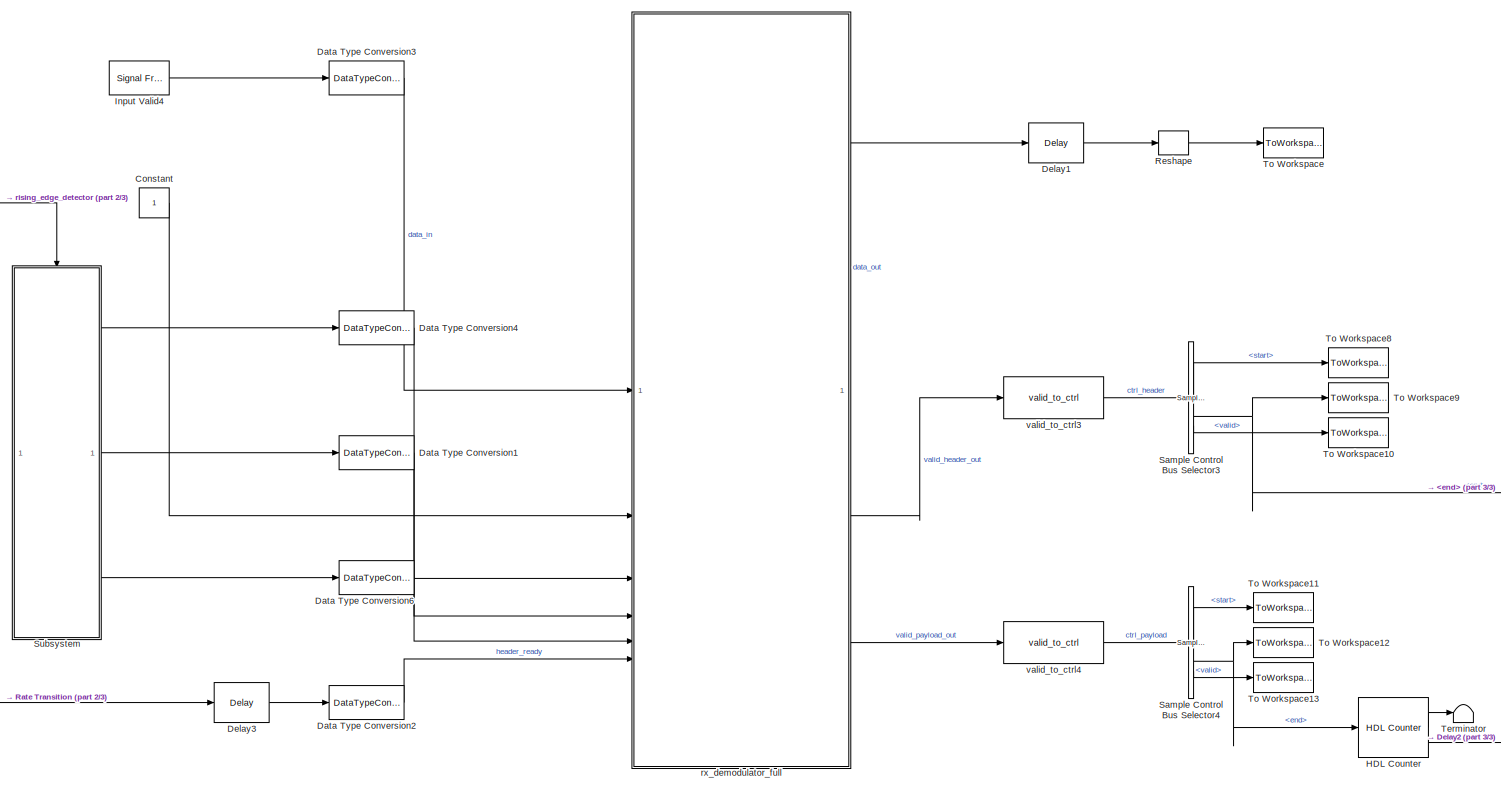
[diagram: root canvas - part 1/3, center side, full height]
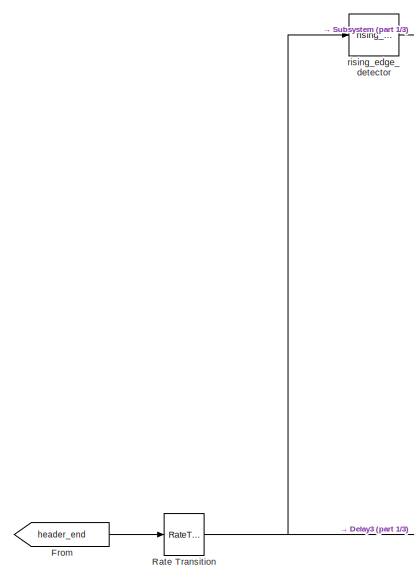
[diagram: root canvas - part 2/3, middle left region]
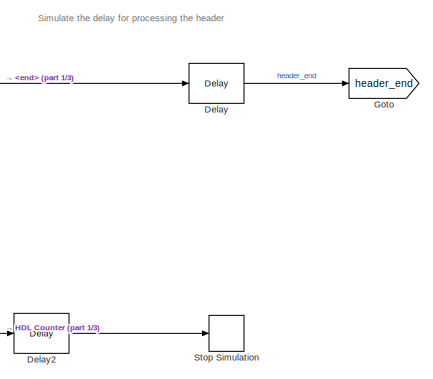
[diagram: root canvas - part 3/3, bottom right region]
MODEL slx_0fde7227c311
KIND model
CONFIG AbsTol = auto
CONFIG EnableMultiTasking = off
CONFIG FixedStep = auto
CONFIG MaxStep = auto
CONFIG MinStep = auto
CONFIG RelTol = 1e-3
CONFIG SampleTimeConstraint = Unconstrained
CONFIG SolverName = FixedStepDiscrete
CONFIG StartTime = 0.0
CONFIG StopTime = stopTime
BLOCK [Constant] Constant
  OutDataTypeStr = boolean
  SampleTime = -1
BLOCK [DataTypeConversion] Data Type Conversion1
  OutDataTypeStr = uint8
  RndMeth = Floor
  SaturateOnIntegerOverflow = off
BLOCK [DataTypeConversion] Data Type Conversion2
  OutDataTypeStr = boolean
  RndMeth = Floor
  SaturateOnIntegerOverflow = off
BLOCK [DataTypeConversion] Data Type Conversion3
  OutDataTypeStr = CONST.ipCoreDataType
  RndMeth = Floor
  SaturateOnIntegerOverflow = off
BLOCK [DataTypeConversion] Data Type Conversion4
  OutDataTypeStr = uint8
  RndMeth = Floor
  SaturateOnIntegerOverflow = off
BLOCK [DataTypeConversion] Data Type Conversion6
  OutDataTypeStr = boolean
  RndMeth = Floor
  SaturateOnIntegerOverflow = off
BLOCK [Delay] Delay
  DelayLength = 200
  InitialCondition = 0
  InputPortMap = u0
  UseCircularBuffer = on
  UserDataPersistent = on
BLOCK [Delay] Delay1
  DelayLength = 1
  InitialCondition = 0
  InputPortMap = u0
  UseCircularBuffer = on
  UserDataPersistent = on
BLOCK [Delay] Delay2
  DelayLength = 500
  InitialCondition = 0
  InputPortMap = u0
  UseCircularBuffer = on
  UserDataPersistent = on
BLOCK [Delay] Delay3
  DelayLength = 1
  InitialCondition = 0
  InputPortMap = u0
  UseCircularBuffer = on
  UserDataPersistent = on
BLOCK [From] From
  GotoTag = header_end
BLOCK [Goto] Goto
  GotoTag = header_end
BLOCK [Reference] HDL Counter  REF=hdlsllib/Sources/HDL Counter
  SourceBlock = hdlsllib/Sources/HDL Counter
  SourceType = HDL Counter
BLOCK [Reference] Input Valid4  REF=dspsrcs4/Signal From
Workspace
  SourceBlock = dspsrcs4/Signal From\nWorkspace
  SourceType = Signal From Workspace
BLOCK [RateTransition] Rate Transition
  OutPortSampleTime = 1/CONST.fs
BLOCK [Reshape] Reshape
BLOCK [Reference] Sample Control Bus Selector3  REF=whdlutilities/Sample Control
Bus Selector
  SourceBlock = whdlutilities/Sample Control\nBus Selector
BLOCK [Reference] Sample Control Bus Selector4  REF=whdlutilities/Sample Control
Bus Selector
  SourceBlock = whdlutilities/Sample Control\nBus Selector
BLOCK [Stop] Stop Simulation
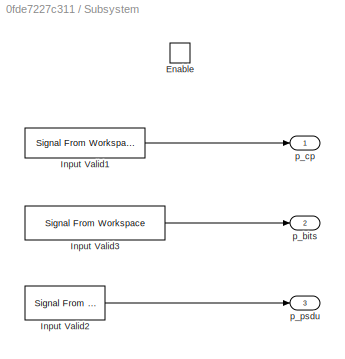
BLOCK [SubSystem] Subsystem
BLOCK [EnablePort] Subsystem/Enable
BLOCK [Reference] Subsystem/Input Valid1  REF=dspsrcs4/Signal From
Workspace
  SourceBlock = dspsrcs4/Signal From\nWorkspace
  SourceType = Signal From Workspace
BLOCK [Reference] Subsystem/Input Valid2  REF=dspsrcs4/Signal From
Workspace
  SourceBlock = dspsrcs4/Signal From\nWorkspace
  SourceType = Signal From Workspace
BLOCK [Reference] Subsystem/Input Valid3  REF=dspsrcs4/Signal From
Workspace
  SourceBlock = dspsrcs4/Signal From\nWorkspace
  SourceType = Signal From Workspace
BLOCK [Outport] Subsystem/p_bits
  Port = 2
BLOCK [Outport] Subsystem/p_cp
BLOCK [Outport] Subsystem/p_psdu
  Port = 3
BLOCK [Terminator] Terminator
BLOCK [ToWorkspace] To Workspace
  MaxDataPoints = inf
  SampleTime = 1/CONST.fPHY
  Save2DSignal = 2-D array (concatenate along first dimension)
  VariableName = dataOut
BLOCK [ToWorkspace] To Workspace10
  MaxDataPoints = inf
  SampleTime = 1/CONST.fPHY
  Save2DSignal = 2-D array (concatenate along first dimension)
  VariableName = validOut
BLOCK [ToWorkspace] To Workspace11
  MaxDataPoints = inf
  SampleTime = 1/CONST.fPHY
  Save2DSignal = 2-D array (concatenate along first dimension)
  VariableName = startOut1
BLOCK [ToWorkspace] To Workspace12
  MaxDataPoints = inf
  SampleTime = 1/CONST.fPHY
  Save2DSignal = 2-D array (concatenate along first dimension)
  VariableName = endOut1
BLOCK [ToWorkspace] To Workspace13
  MaxDataPoints = inf
  SampleTime = 1/CONST.fPHY
  Save2DSignal = 2-D array (concatenate along first dimension)
  VariableName = validOut1
BLOCK [ToWorkspace] To Workspace8
  MaxDataPoints = inf
  SampleTime = 1/CONST.fPHY
  Save2DSignal = 2-D array (concatenate along first dimension)
  VariableName = startOut
BLOCK [ToWorkspace] To Workspace9
  MaxDataPoints = inf
  SampleTime = 1/CONST.fPHY
  Save2DSignal = 2-D array (concatenate along first dimension)
  VariableName = endOut
BLOCK [Reference] rising_edge_detector  REF=HDL_ieee_8021513/rising_edge_detector
  SourceBlock = HDL_ieee_8021513/rising_edge_detector
  SourceProductName = HDL IEEE 8021513
  SourceType = SubSystem
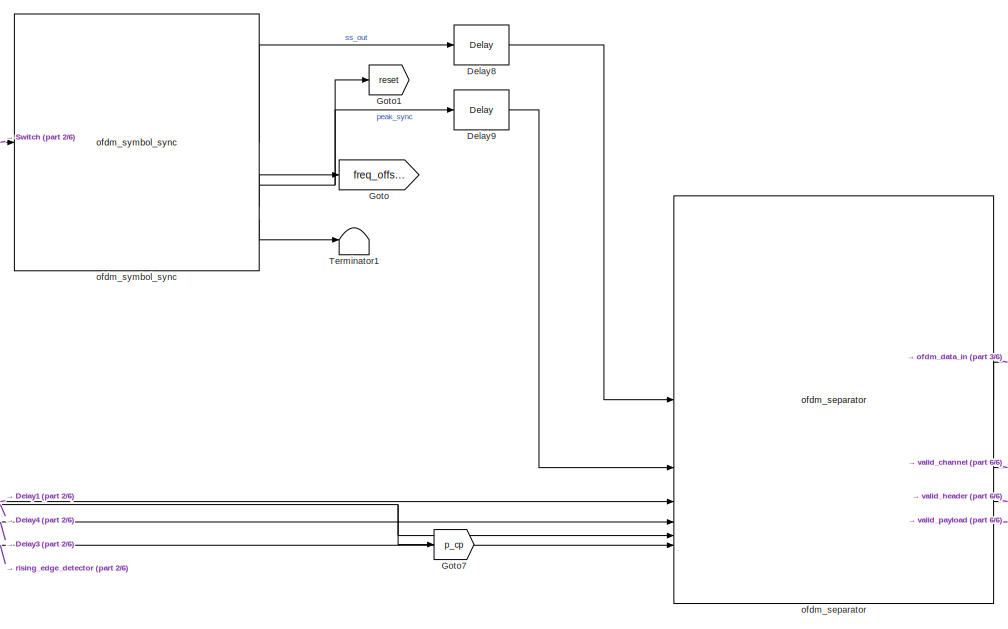
[diagram: rx_demodulator_full - part 1/6, middle left region]
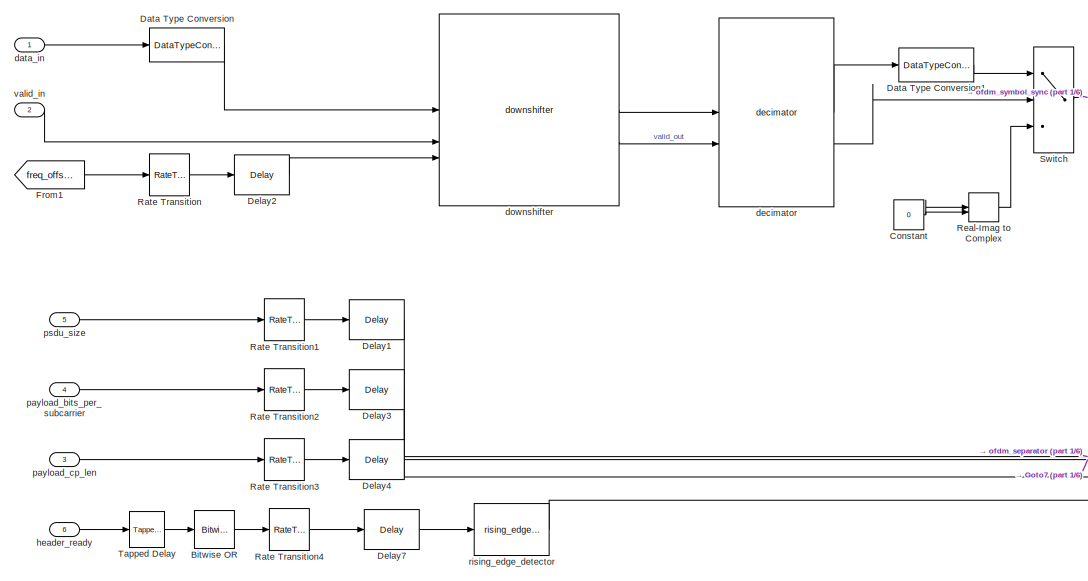
[diagram: rx_demodulator_full - part 2/6, middle left region]
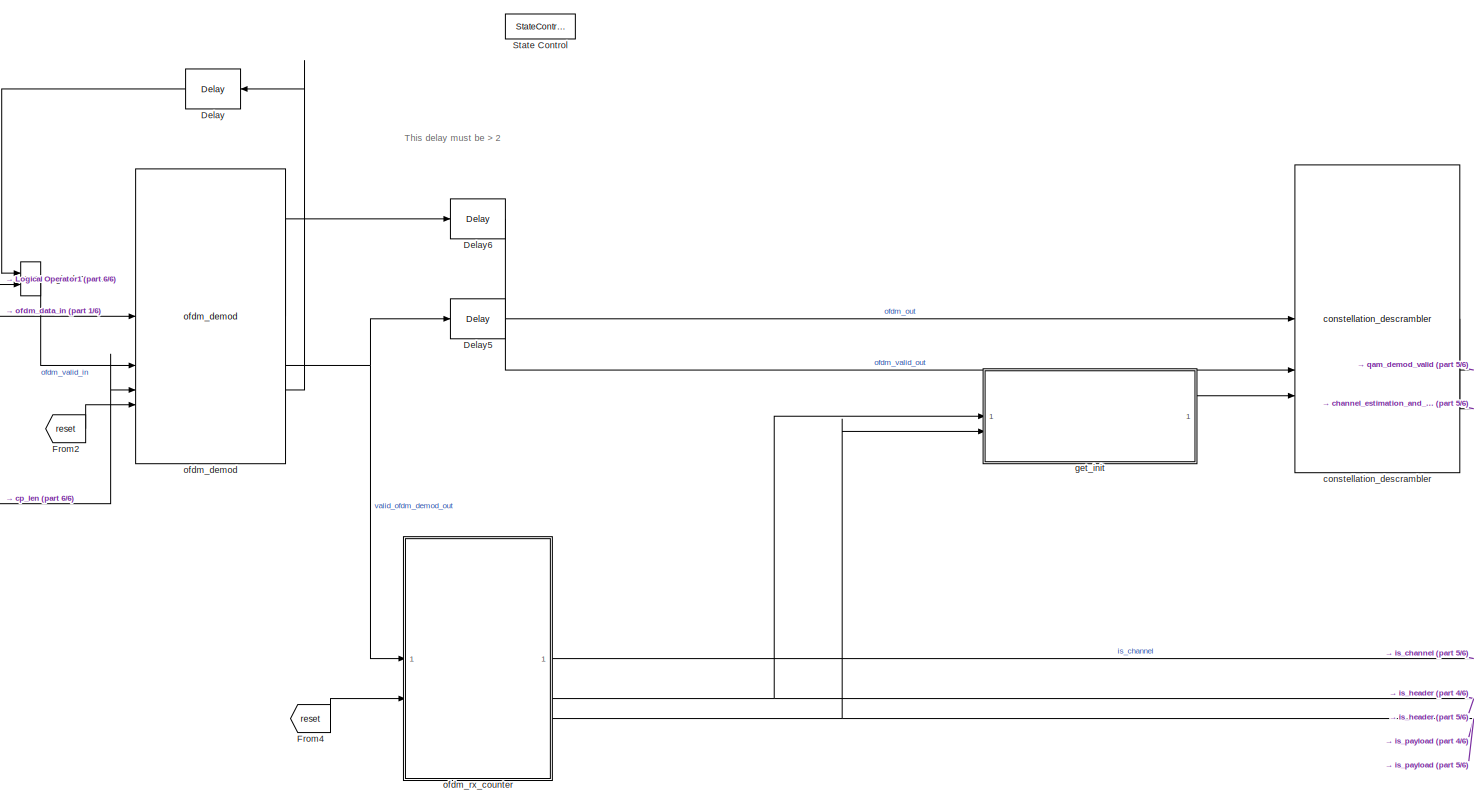
[diagram: rx_demodulator_full - part 3/6, center side, full height]
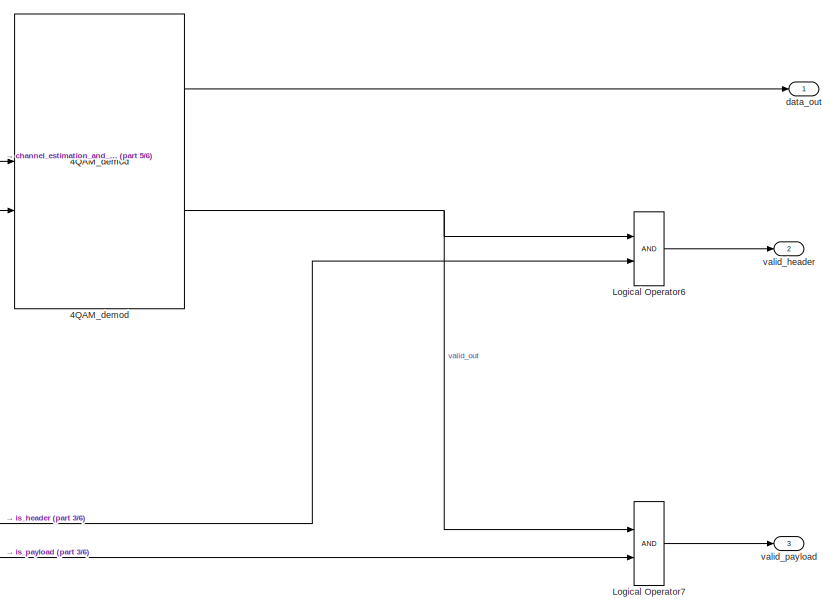
[diagram: rx_demodulator_full - part 4/6, middle right region]
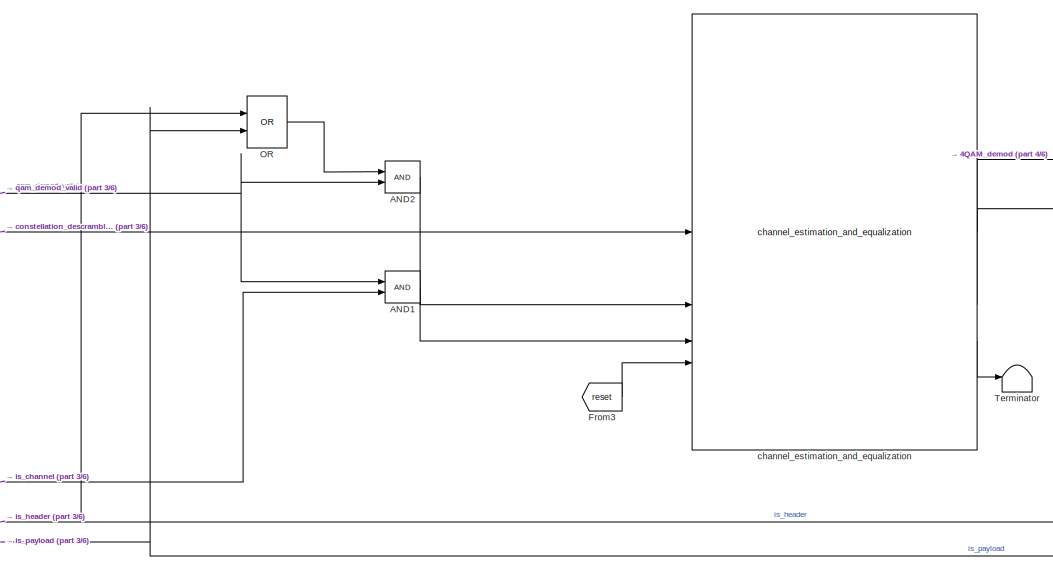
[diagram: rx_demodulator_full - part 5/6, middle right region]
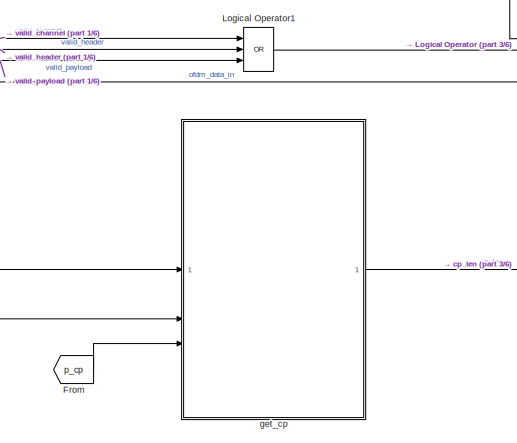
[diagram: rx_demodulator_full - part 6/6, central region]
BLOCK [SubSystem] rx_demodulator_full
  AncestorBlock = HDL_ieee_8021513/rx_demodulator_full
  TreatAsAtomicUnit = on
BLOCK [Reference] rx_demodulator_full/4QAM_demod  REF=HDL_ieee_8021513/4QAM_demod
  SourceBlock = HDL_ieee_8021513/4QAM_demod
  SourceProductName = HDL IEEE 8021513
  SourceType = SubSystem
BLOCK [Logic] rx_demodulator_full/AND1
  AllPortsSameDT = off
  IconShape = distinctive
  OutDataTypeStr = boolean
BLOCK [Logic] rx_demodulator_full/AND2
  AllPortsSameDT = off
  IconShape = distinctive
  NameLocation = left
  OutDataTypeStr = boolean
BLOCK [Reference] rx_demodulator_full/Bitwise OR  REF=simulink/Logic and Bit
Operations/Bitwise
Operator
  LibrarySourceBlock = simulink/Quick Insert/Logic and Bit\nOperations/Bitwise OR
  SourceBlock = simulink/Logic and Bit\nOperations/Bitwise\nOperator
  SourceType = Bitwise Operator
BLOCK [Constant] rx_demodulator_full/Constant
  OutDataTypeStr = CONST.rxDecimatorOutputDataType
  SampleTime = -1
  Value = 0
BLOCK [DataTypeConversion] rx_demodulator_full/Data Type Conversion
  OutDataTypeStr = CONST.rxDemodInputDataType
  RndMeth = Floor
  SaturateOnIntegerOverflow = off
BLOCK [DataTypeConversion] rx_demodulator_full/Data Type Conversion1
  OutDataTypeStr = CONST.rxDecimatorOutputDataType
  RndMeth = Floor
  SaturateOnIntegerOverflow = off
BLOCK [Delay] rx_demodulator_full/Delay
  DelayLength = 1
  InitialCondition = 0
  InputPortMap = u0
  NameLocation = top
  UseCircularBuffer = on
  UserDataPersistent = on
BLOCK [Delay] rx_demodulator_full/Delay1
  DelayLength = 1
  InitialCondition = 0
  InputPortMap = u0
  UseCircularBuffer = on
  UserDataPersistent = on
BLOCK [Delay] rx_demodulator_full/Delay2
  DelayLength = 1
  InitialCondition = 0
  InputPortMap = u0
  UseCircularBuffer = on
  UserDataPersistent = on
BLOCK [Delay] rx_demodulator_full/Delay3
  DelayLength = 1
  InitialCondition = 0
  InputPortMap = u0
  UseCircularBuffer = on
  UserDataPersistent = on
BLOCK [Delay] rx_demodulator_full/Delay4
  DelayLength = 1
  InitialCondition = 0
  InputPortMap = u0
  UseCircularBuffer = on
  UserDataPersistent = on
BLOCK [Delay] rx_demodulator_full/Delay5
  DelayLength = 5
  InitialCondition = 0
  InputPortMap = u0
  UseCircularBuffer = on
  UserDataPersistent = on
BLOCK [Delay] rx_demodulator_full/Delay6
  DelayLength = 5
  InitialCondition = 0
  InputPortMap = u0
  UseCircularBuffer = on
  UserDataPersistent = on
BLOCK [Delay] rx_demodulator_full/Delay7
  DelayLength = 1
  InitialCondition = 0
  InputPortMap = u0
  UseCircularBuffer = on
  UserDataPersistent = on
BLOCK [Delay] rx_demodulator_full/Delay8
  InitialCondition = 0
  InputPortMap = u0
  UseCircularBuffer = on
  UserDataPersistent = on
BLOCK [Delay] rx_demodulator_full/Delay9
  InitialCondition = 0
  InputPortMap = u0
  UseCircularBuffer = on
  UserDataPersistent = on
BLOCK [From] rx_demodulator_full/From
  GotoTag = p_cp
BLOCK [From] rx_demodulator_full/From1
  GotoTag = freq_offset
BLOCK [From] rx_demodulator_full/From2
  GotoTag = reset
BLOCK [From] rx_demodulator_full/From3
  GotoTag = reset
BLOCK [From] rx_demodulator_full/From4
  GotoTag = reset
BLOCK [Goto] rx_demodulator_full/Goto
  GotoTag = freq_offset
BLOCK [Goto] rx_demodulator_full/Goto1
  GotoTag = reset
BLOCK [Goto] rx_demodulator_full/Goto7
  GotoTag = p_cp
BLOCK [Logic] rx_demodulator_full/Logical Operator
  AllPortsSameDT = off
  IconShape = distinctive
  OutDataTypeStr = boolean
BLOCK [Logic] rx_demodulator_full/Logical Operator1
  AllPortsSameDT = off
  IconShape = distinctive
  Inputs = 3
  Operator = OR
  OutDataTypeStr = boolean
BLOCK [Logic] rx_demodulator_full/Logical Operator6
  AllPortsSameDT = off
  IconShape = distinctive
  OutDataTypeStr = boolean
BLOCK [Logic] rx_demodulator_full/Logical Operator7
  AllPortsSameDT = off
  IconShape = distinctive
  OutDataTypeStr = boolean
BLOCK [Logic] rx_demodulator_full/OR
  AllPortsSameDT = off
  IconShape = distinctive
  Operator = OR
  OutDataTypeStr = boolean
BLOCK [RateTransition] rx_demodulator_full/Rate Transition
  OutPortSampleTime = 1/CONST.fDAC
BLOCK [RateTransition] rx_demodulator_full/Rate Transition1
  OutPortSampleTime = 1/CONST.fPHY
BLOCK [RateTransition] rx_demodulator_full/Rate Transition2
  OutPortSampleTime = 1/CONST.fPHY
BLOCK [RateTransition] rx_demodulator_full/Rate Transition3
  OutPortSampleTime = 1/CONST.fPHY
BLOCK [RateTransition] rx_demodulator_full/Rate Transition4
  OutPortSampleTime = 1/CONST.fPHY
BLOCK [RealImagToComplex] rx_demodulator_full/Real-Imag to Complex
BLOCK [StateControl] rx_demodulator_full/State Control
  StateControl = Synchronous
BLOCK [Switch] rx_demodulator_full/Switch
  Criteria = u2 ~= 0
  InputSameDT = off
  SaturateOnIntegerOverflow = off
BLOCK [Reference] rx_demodulator_full/Tapped Delay  REF=simulink/Discrete/Tapped Delay
  SourceBlock = simulink/Discrete/Tapped Delay
  SourceType = Tapped Delay Line
BLOCK [Terminator] rx_demodulator_full/Terminator
BLOCK [Terminator] rx_demodulator_full/Terminator1
BLOCK [Reference] rx_demodulator_full/channel_estimation_and_equalization  REF=HDL_ieee_8021513/channel_estimation_and_equalization
  SourceBlock = HDL_ieee_8021513/channel_estimation_and_equalization
  SourceProductName = HDL IEEE 8021513
  SourceType = SubSystem
BLOCK [Reference] rx_demodulator_full/constellation_descrambler  REF=HDL_ieee_8021513/constellation_descrambler
  SourceBlock = HDL_ieee_8021513/constellation_descrambler
  SourceProductName = HDL IEEE 8021513
  SourceType = SubSystem
BLOCK [Inport] rx_demodulator_full/data_in
BLOCK [Outport] rx_demodulator_full/data_out
  VectorParamsAs1DForOutWhenUnconnected = off
BLOCK [Reference] rx_demodulator_full/decimator  REF=HDL_ieee_8021513/decimator
  SourceBlock = HDL_ieee_8021513/decimator
  SourceProductName = HDL IEEE 8021513
  SourceType = SubSystem
BLOCK [Reference] rx_demodulator_full/downshifter  REF=HDL_ieee_8021513/downshifter
  SourceBlock = HDL_ieee_8021513/downshifter
  SourceProductName = HDL IEEE 8021513
  SourceType = SubSystem
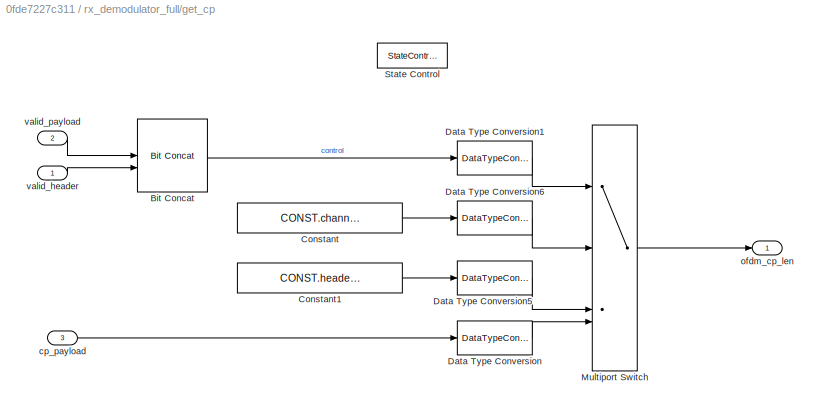
BLOCK [SubSystem] rx_demodulator_full/get_cp
BLOCK [Reference] rx_demodulator_full/get_cp/Bit Concat  REF=hdlsllib/Logic and Bit
Operations/Bit Concat
  SourceBlock = hdlsllib/Logic and Bit\nOperations/Bit Concat
  SourceType = Bit Concat
BLOCK [Constant] rx_demodulator_full/get_cp/Constant
  OutDataTypeStr = uint8
  SampleTime = -1
  Value = CONST.channelCyclicPrefixLen
BLOCK [Constant] rx_demodulator_full/get_cp/Constant1
  OutDataTypeStr = uint8
  SampleTime = -1
  Value = CONST.headerCyclicPrefixLen
BLOCK [DataTypeConversion] rx_demodulator_full/get_cp/Data Type Conversion
  OutDataTypeStr = uint8
  RndMeth = Floor
  SaturateOnIntegerOverflow = off
BLOCK [DataTypeConversion] rx_demodulator_full/get_cp/Data Type Conversion1
  OutDataTypeStr = fixdt(0,2,0)
  RndMeth = Floor
  SaturateOnIntegerOverflow = off
BLOCK [DataTypeConversion] rx_demodulator_full/get_cp/Data Type Conversion5
  OutDataTypeStr = uint8
  RndMeth = Floor
  SaturateOnIntegerOverflow = off
BLOCK [DataTypeConversion] rx_demodulator_full/get_cp/Data Type Conversion6
  OutDataTypeStr = uint8
  RndMeth = Floor
  SaturateOnIntegerOverflow = off
BLOCK [MultiPortSwitch] rx_demodulator_full/get_cp/Multiport Switch
  DataPortOrder = Zero-based contiguous
  SaturateOnIntegerOverflow = off
  zeroidx = on
BLOCK [StateControl] rx_demodulator_full/get_cp/State Control
  StateControl = Synchronous
BLOCK [Inport] rx_demodulator_full/get_cp/cp_payload
  Port = 3
BLOCK [Outport] rx_demodulator_full/get_cp/ofdm_cp_len
BLOCK [Inport] rx_demodulator_full/get_cp/valid_header
BLOCK [Inport] rx_demodulator_full/get_cp/valid_payload
  Port = 2
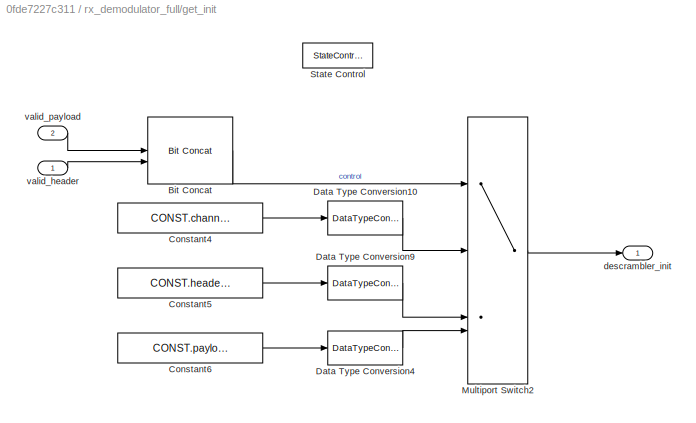
BLOCK [SubSystem] rx_demodulator_full/get_init
BLOCK [Reference] rx_demodulator_full/get_init/Bit Concat  REF=hdlsllib/Logic and Bit
Operations/Bit Concat
  SourceBlock = hdlsllib/Logic and Bit\nOperations/Bit Concat
  SourceType = Bit Concat
BLOCK [Constant] rx_demodulator_full/get_init/Constant4
  OutDataTypeStr = uint8
  SampleTime = -1
  Value = CONST.channelScramblerInit
BLOCK [Constant] rx_demodulator_full/get_init/Constant5
  OutDataTypeStr = uint8
  SampleTime = -1
  Value = CONST.headerScramblerInit
BLOCK [Constant] rx_demodulator_full/get_init/Constant6
  OutDataTypeStr = uint8
  SampleTime = -1
  Value = CONST.payloadScramblerInit
BLOCK [DataTypeConversion] rx_demodulator_full/get_init/Data Type Conversion10
  OutDataTypeStr = boolean
  RndMeth = Floor
  SaturateOnIntegerOverflow = off
BLOCK [DataTypeConversion] rx_demodulator_full/get_init/Data Type Conversion4
  OutDataTypeStr = boolean
  RndMeth = Floor
  SaturateOnIntegerOverflow = off
BLOCK [DataTypeConversion] rx_demodulator_full/get_init/Data Type Conversion9
  OutDataTypeStr = boolean
  RndMeth = Floor
  SaturateOnIntegerOverflow = off
BLOCK [MultiPortSwitch] rx_demodulator_full/get_init/Multiport Switch2
  DataPortOrder = Zero-based contiguous
  InputSameDT = off
  SaturateOnIntegerOverflow = off
  zeroidx = on
BLOCK [StateControl] rx_demodulator_full/get_init/State Control
  StateControl = Synchronous
BLOCK [Outport] rx_demodulator_full/get_init/descrambler_init
BLOCK [Inport] rx_demodulator_full/get_init/valid_header
BLOCK [Inport] rx_demodulator_full/get_init/valid_payload
  Port = 2
BLOCK [Inport] rx_demodulator_full/header_ready
  Port = 6
BLOCK [Reference] rx_demodulator_full/ofdm_demod  REF=HDL_ieee_8021513/ofdm_demod
  SourceBlock = HDL_ieee_8021513/ofdm_demod
  SourceProductName = HDL IEEE 8021513
  SourceType = SubSystem
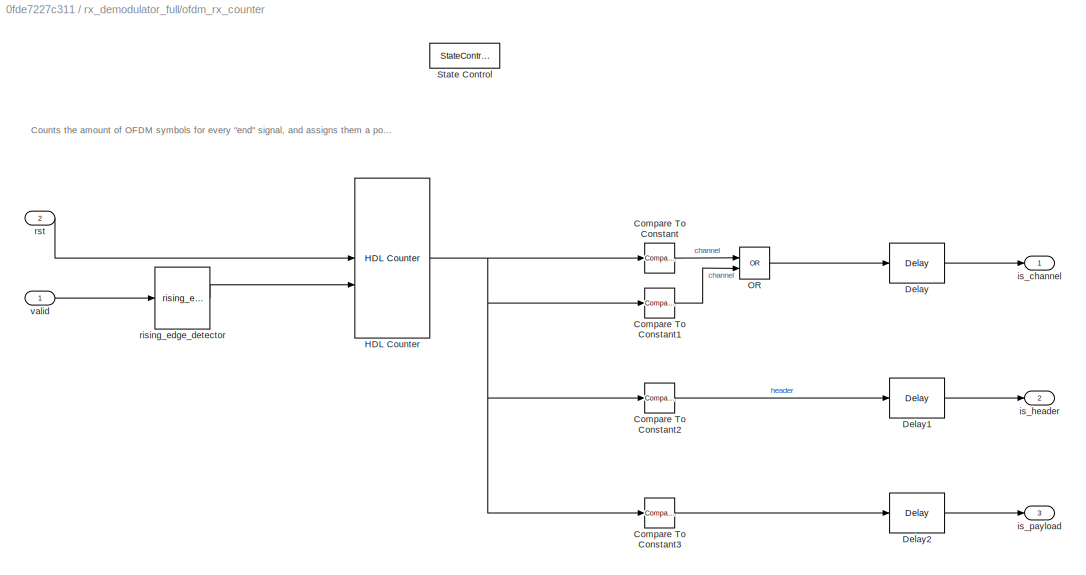
BLOCK [SubSystem] rx_demodulator_full/ofdm_rx_counter
BLOCK [Reference] rx_demodulator_full/ofdm_rx_counter/Compare To Constant  REF=hdlsllib/Logic and Bit
Operations/Compare
To Constant
  SourceBlock = hdlsllib/Logic and Bit\nOperations/Compare\nTo Constant
  SourceType = Compare To Constant
BLOCK [Reference] rx_demodulator_full/ofdm_rx_counter/Compare To Constant1  REF=hdlsllib/Logic and Bit
Operations/Compare
To Constant
  SourceBlock = hdlsllib/Logic and Bit\nOperations/Compare\nTo Constant
  SourceType = Compare To Constant
BLOCK [Reference] rx_demodulator_full/ofdm_rx_counter/Compare To Constant2  REF=hdlsllib/Logic and Bit
Operations/Compare
To Constant
  SourceBlock = hdlsllib/Logic and Bit\nOperations/Compare\nTo Constant
  SourceType = Compare To Constant
BLOCK [Reference] rx_demodulator_full/ofdm_rx_counter/Compare To Constant3  REF=hdlsllib/Logic and Bit
Operations/Compare
To Constant
  SourceBlock = hdlsllib/Logic and Bit\nOperations/Compare\nTo Constant
  SourceType = Compare To Constant
BLOCK [Delay] rx_demodulator_full/ofdm_rx_counter/Delay
  DelayLength = 1
  InitialCondition = 0
  InputPortMap = u0
  UseCircularBuffer = on
  UserDataPersistent = on
BLOCK [Delay] rx_demodulator_full/ofdm_rx_counter/Delay1
  DelayLength = 1
  InitialCondition = 0
  InputPortMap = u0
  UseCircularBuffer = on
  UserDataPersistent = on
BLOCK [Delay] rx_demodulator_full/ofdm_rx_counter/Delay2
  DelayLength = 1
  InitialCondition = 0
  InputPortMap = u0
  UseCircularBuffer = on
  UserDataPersistent = on
BLOCK [Reference] rx_demodulator_full/ofdm_rx_counter/HDL Counter  REF=hdlsllib/Sources/HDL Counter
  SourceBlock = hdlsllib/Sources/HDL Counter
  SourceType = HDL Counter
BLOCK [Logic] rx_demodulator_full/ofdm_rx_counter/OR
  AllPortsSameDT = off
  IconShape = distinctive
  Operator = OR
  OutDataTypeStr = boolean
BLOCK [StateControl] rx_demodulator_full/ofdm_rx_counter/State Control
  StateControl = Synchronous
BLOCK [Outport] rx_demodulator_full/ofdm_rx_counter/is_channel
BLOCK [Outport] rx_demodulator_full/ofdm_rx_counter/is_header
  Port = 2
BLOCK [Outport] rx_demodulator_full/ofdm_rx_counter/is_payload
  Port = 3
BLOCK [Reference] rx_demodulator_full/ofdm_rx_counter/rising_edge_detector  REF=HDL_ieee_8021513/rising_edge_detector
  SourceBlock = HDL_ieee_8021513/rising_edge_detector
  SourceProductName = HDL IEEE 8021513
  SourceType = SubSystem
BLOCK [Inport] rx_demodulator_full/ofdm_rx_counter/rst
  Port = 2
BLOCK [Inport] rx_demodulator_full/ofdm_rx_counter/valid
BLOCK [Reference] rx_demodulator_full/ofdm_separator  REF=HDL_ieee_8021513/ofdm_separator
  SourceBlock = HDL_ieee_8021513/ofdm_separator
  SourceProductName = HDL IEEE 8021513
  SourceType = SubSystem
BLOCK [Reference] rx_demodulator_full/ofdm_symbol_sync  REF=HDL_ieee_8021513/ofdm_symbol_sync
  SourceBlock = HDL_ieee_8021513/ofdm_symbol_sync
  SourceProductName = HDL IEEE 8021513
  SourceType = SubSystem
BLOCK [Inport] rx_demodulator_full/payload_bits_per_subcarrier
  Port = 4
BLOCK [Inport] rx_demodulator_full/payload_cp_len
  Port = 3
BLOCK [Inport] rx_demodulator_full/psdu_size
  Port = 5
BLOCK [Reference] rx_demodulator_full/rising_edge_detector  REF=HDL_ieee_8021513/rising_edge_detector
  SourceBlock = HDL_ieee_8021513/rising_edge_detector
  SourceProductName = HDL IEEE 8021513
  SourceType = SubSystem
BLOCK [Outport] rx_demodulator_full/valid_header
  Port = 2
  VectorParamsAs1DForOutWhenUnconnected = off
BLOCK [Inport] rx_demodulator_full/valid_in
  Port = 2
BLOCK [Outport] rx_demodulator_full/valid_payload
  Port = 3
  VectorParamsAs1DForOutWhenUnconnected = off
BLOCK [Reference] valid_to_ctrl3  REF=HDL_ieee_8021513/valid_to_ctrl
  SourceBlock = HDL_ieee_8021513/valid_to_ctrl
  SourceProductName = HDL IEEE 8021513
  SourceType = SubSystem
BLOCK [Reference] valid_to_ctrl4  REF=HDL_ieee_8021513/valid_to_ctrl
  SourceBlock = HDL_ieee_8021513/valid_to_ctrl
  SourceProductName = HDL IEEE 8021513
  SourceType = SubSystem
ANNOTATION (root): Simulate the delay for processing the header
ANNOTATION rx_demodulator_full: This delay must be > 2
ANNOTATION rx_demodulator_full/ofdm_rx_counter: Counts the amount of OFDM symbols for every "end" signal, and assigns them a position (preamble, channel, header, payload)
LINE Constant:1 -> rx_demodulator_full:2
LINE Data Type Conversion1:1 -> rx_demodulator_full:4
LINE Data Type Conversion2:1 -> rx_demodulator_full:6
LINE Data Type Conversion3:1 -> rx_demodulator_full:1
LINE Data Type Conversion4:1 -> rx_demodulator_full:3
LINE Data Type Conversion6:1 -> rx_demodulator_full:5
LINE Delay1:1 -> Reshape:1
LINE Delay2:1 -> Stop Simulation:1
LINE Delay3:1 -> Data Type Conversion2:1
LINE Delay:1 -> Goto:1
LINE From:1 -> Rate Transition:1
LINE HDL Counter:1 -> Terminator:1
LINE HDL Counter:2 -> Delay2:1
LINE Input Valid4:1 -> Data Type Conversion3:1
NET Rate Transition:1 -> Delay3:1, rising_edge_detector:1
LINE Reshape:1 -> To Workspace:1
LINE Sample Control Bus Selector3:1 -> To Workspace8:1
NET Sample Control Bus Selector3:2 -> Delay:1, To Workspace9:1
LINE Sample Control Bus Selector3:3 -> To Workspace10:1
LINE Sample Control Bus Selector4:1 -> To Workspace11:1
NET Sample Control Bus Selector4:2 -> HDL Counter:1, To Workspace12:1
LINE Sample Control Bus Selector4:3 -> To Workspace13:1
LINE Subsystem/Input Valid1:1 -> Subsystem/p_cp:1
LINE Subsystem/Input Valid2:1 -> Subsystem/p_psdu:1
LINE Subsystem/Input Valid3:1 -> Subsystem/p_bits:1
LINE Subsystem:1 -> Data Type Conversion4:1
LINE Subsystem:2 -> Data Type Conversion1:1
LINE Subsystem:3 -> Data Type Conversion6:1
LINE rising_edge_detector:1 -> Subsystem:enable
LINE rx_demodulator_full:1 -> Delay1:1
LINE rx_demodulator_full:2 -> valid_to_ctrl3:1
LINE rx_demodulator_full:3 -> valid_to_ctrl4:1
LINE valid_to_ctrl3:1 -> Sample Control Bus Selector3:1
LINE valid_to_ctrl4:1 -> Sample Control Bus Selector4:1
note: NET lines group one-source signal fan-out (src -> all destinations, sorted); 1:1 wires keep LINE
